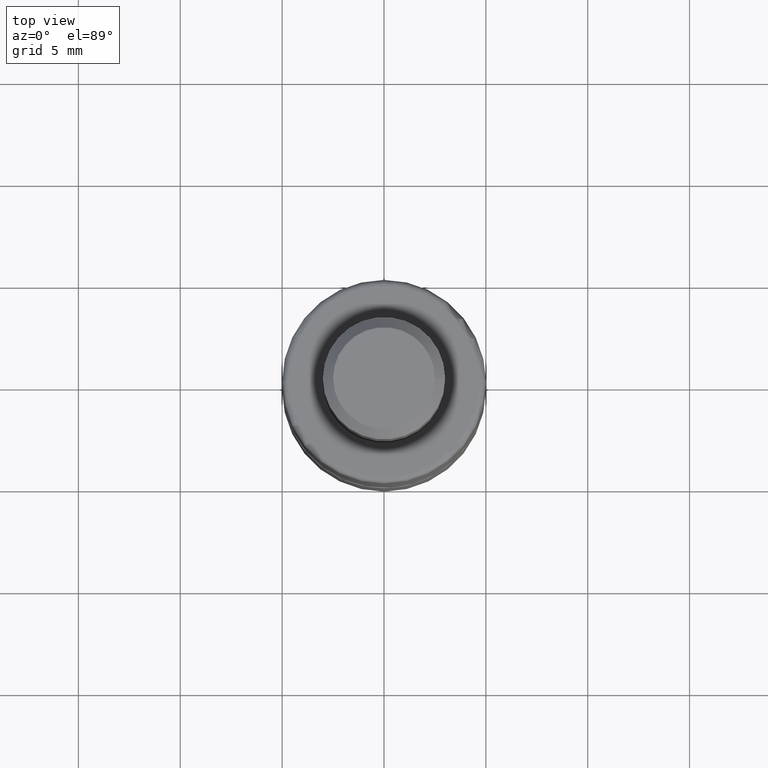
[diagram: clean part render]
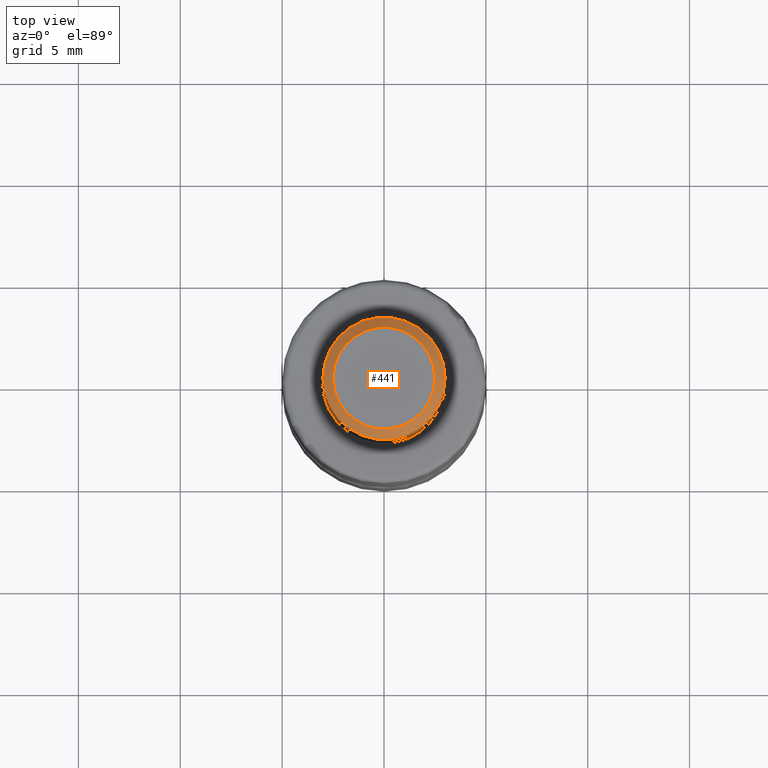
[diagram: same view with one face highlighted and labeled with its STEP entity id]
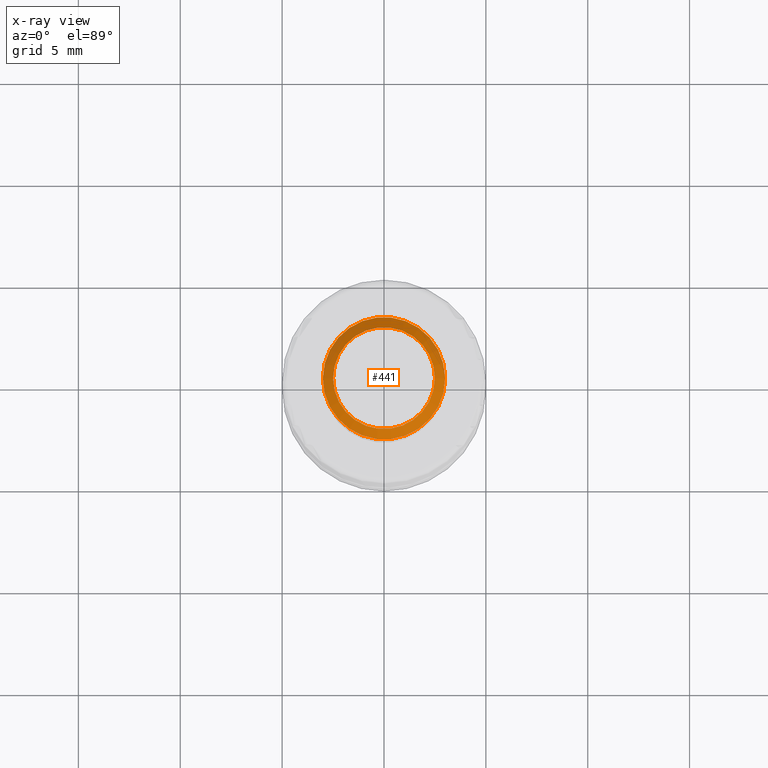
[diagram: x-ray of the same camera — body ghosted, the highlighted face saturated]
A machine part, top view. The second image highlights one B-rep face of the part: STEP entity #441.
The next image is the same camera in x-ray: the body ghosted, the highlighted face saturated — about 0% of this face is hidden behind the body in this view.
In plain terms, the highlighted conical surface has half-angle 45 deg.
Its self-contained STEP definition (entity closure, byte-faithful):
#15=CONICAL_SURFACE('',#517,2.75,0.78539816339745);
#47=CIRCLE('',#518,2.5);
#48=CIRCLE('',#519,3.);
#49=CIRCLE('',#520,3.);
#86=FACE_OUTER_BOUND('',#117,.T.);
#117=EDGE_LOOP('',(#395,#396,#397,#398,#399));
#153=LINE('',#794,#182);
#182=VECTOR('',#662,2.75);
#221=VERTEX_POINT('',#791);
#222=VERTEX_POINT('',#793);
#223=VERTEX_POINT('',#795);
#280=EDGE_CURVE('',#221,#221,#47,.T.);
#281=EDGE_CURVE('',#221,#222,#153,.T.);
#282=EDGE_CURVE('',#222,#223,#48,.T.);
#283=EDGE_CURVE('',#223,#222,#49,.T.);
#395=ORIENTED_EDGE('',*,*,#280,.T.);
#396=ORIENTED_EDGE('',*,*,#281,.T.);
#397=ORIENTED_EDGE('',*,*,#282,.T.);
#398=ORIENTED_EDGE('',*,*,#283,.T.);
#399=ORIENTED_EDGE('',*,*,#281,.F.);
#441=ADVANCED_FACE('',(#86),#15,.T.);
#517=AXIS2_PLACEMENT_3D('',#790,#658,#659);
#518=AXIS2_PLACEMENT_3D('',#792,#660,#661);
#519=AXIS2_PLACEMENT_3D('',#796,#663,#664);
#520=AXIS2_PLACEMENT_3D('',#797,#665,#666);
#658=DIRECTION('center_axis',(0.,0.,-1.));
#659=DIRECTION('ref_axis',(-1.,0.,0.));
#660=DIRECTION('center_axis',(0.,0.,-1.));
#661=DIRECTION('ref_axis',(-1.,0.,0.));
#662=DIRECTION('',(0.707106781186549,8.65956056235495E-17,-0.707106781186546));
#663=DIRECTION('center_axis',(0.,0.,1.));
#664=DIRECTION('ref_axis',(-1.,0.,0.));
#665=DIRECTION('center_axis',(0.,0.,1.));
#666=DIRECTION('ref_axis',(-1.,0.,0.));
#790=CARTESIAN_POINT('Origin',(0.,0.,21.25));
#791=CARTESIAN_POINT('',(2.5,-3.06161699786838E-16,21.5));
#792=CARTESIAN_POINT('Origin',(0.,0.,21.5));
#793=CARTESIAN_POINT('',(3.,3.67394039744206E-16,21.));
#794=CARTESIAN_POINT('',(2.75,3.36777869765522E-16,21.25));
#795=CARTESIAN_POINT('',(-3.,-3.67394039744206E-16,21.));
#796=CARTESIAN_POINT('Origin',(0.,0.,21.));
#797=CARTESIAN_POINT('Origin',(0.,0.,21.));